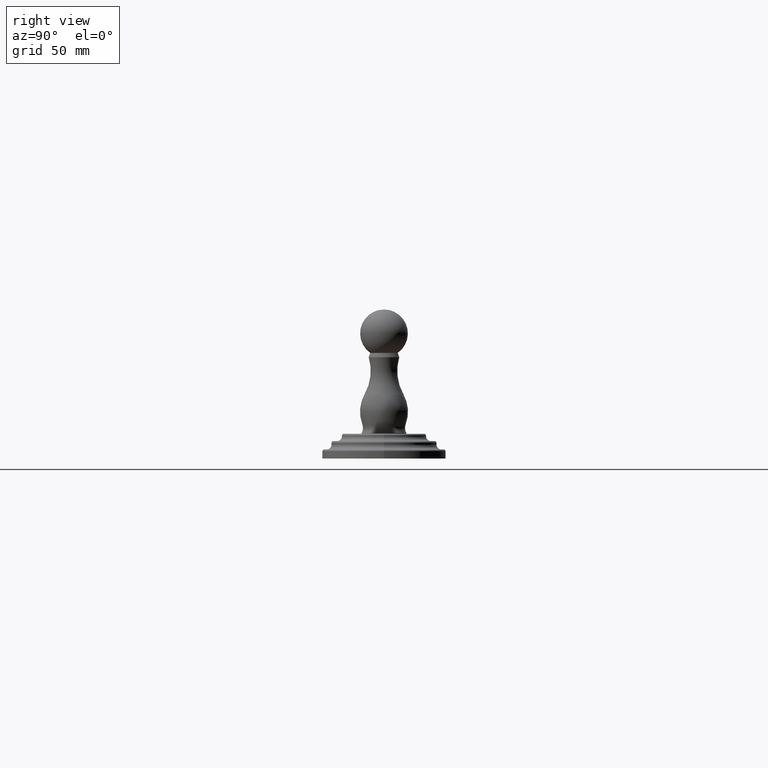
[diagram: clean part render]
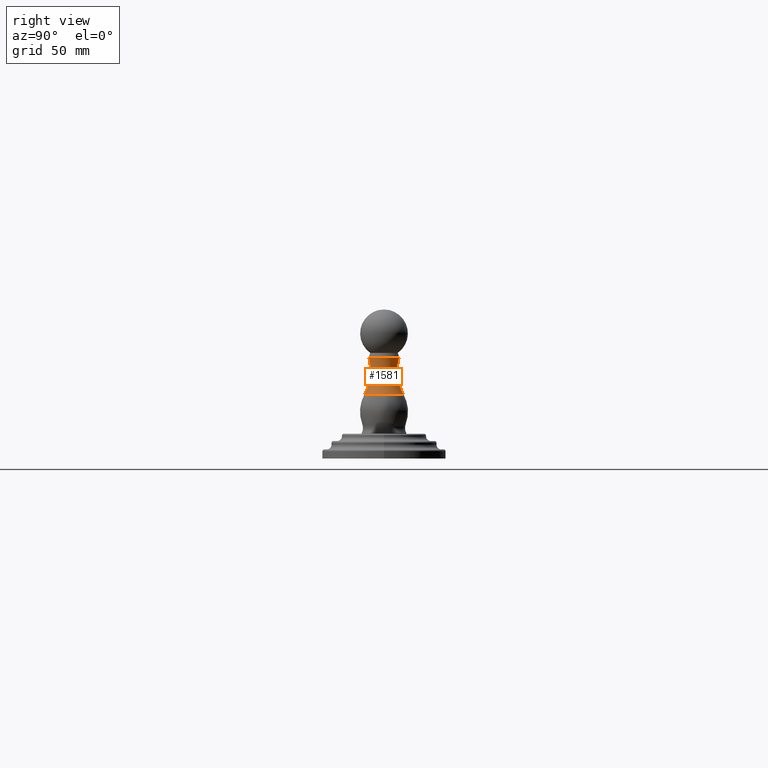
[diagram: same view with one face highlighted and labeled with its STEP entity id]
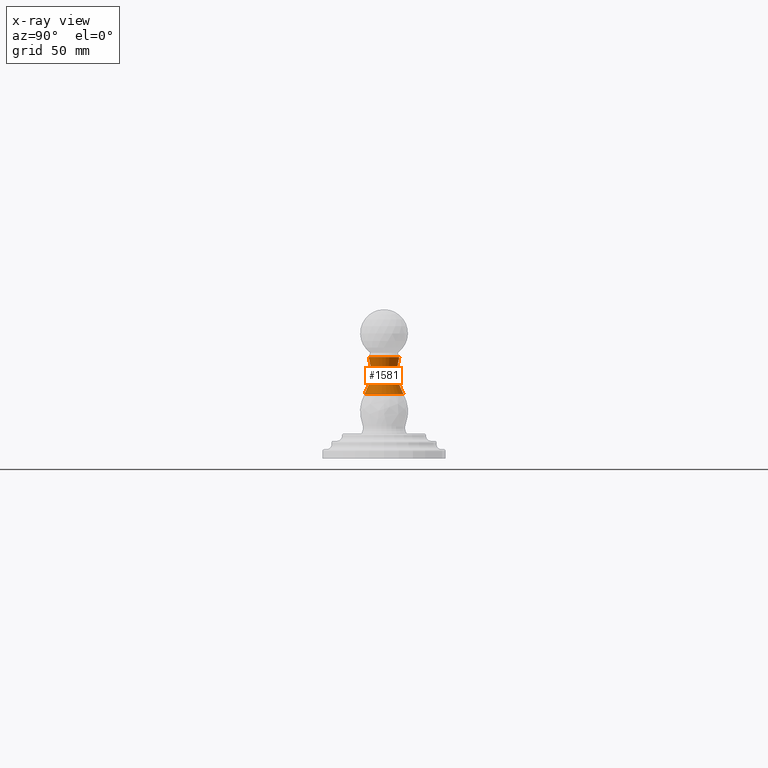
[diagram: x-ray of the same camera — body ghosted, the highlighted face saturated]
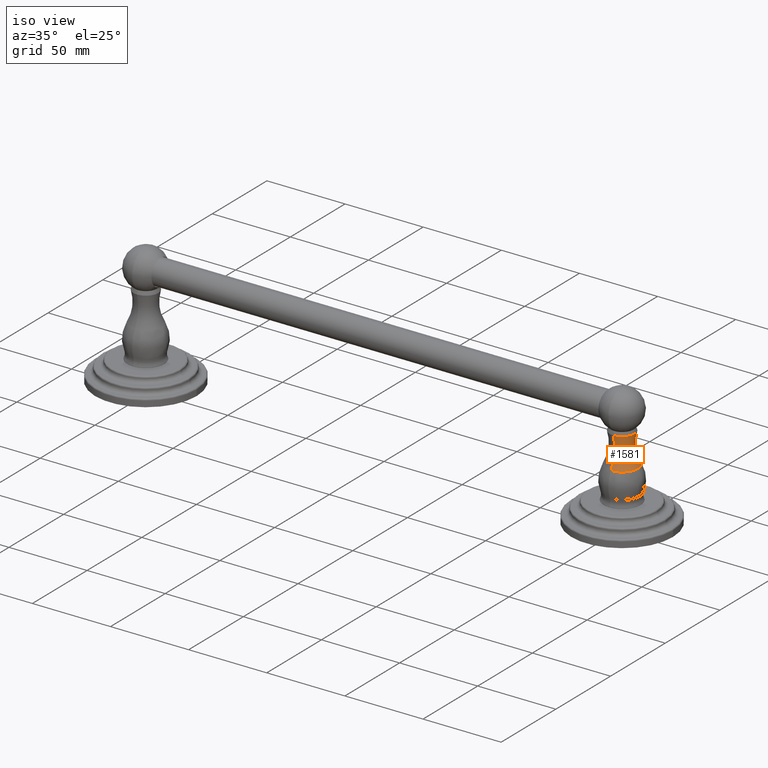
[diagram: same view with one face highlighted and labeled with its STEP entity id]
A machine part, right view. The second image highlights one B-rep face of the part: STEP entity #1581.
The next image is the same camera in x-ray: the body ghosted, the highlighted face saturated — about 0% of this face is hidden behind the body in this view.
A second angle (iso view) of the same face is appended — the face is thin or edge-on in the first view.
In plain terms, the highlighted toroidal blend (fillet) surface has major radius 31.9999 mm and minor (blend) radius 25.0366 mm.
Its self-contained STEP definition (entity closure, byte-faithful):
#406=CARTESIAN_POINT('',(6.E0,0.E0,2.090562298839E0));
#407=DIRECTION('',(0.E0,0.E0,1.E0));
#408=DIRECTION('',(0.E0,-1.E0,0.E0));
#409=AXIS2_PLACEMENT_3D('',#406,#407,#408);
#429=CARTESIAN_POINT('',(6.E0,1.259838069525E0,1.809823576478E0));
#430=DIRECTION('',(-1.E0,0.E0,0.E0));
#431=DIRECTION('',(0.E0,-8.709072738294E-1,-4.914473729618E-1));
#432=AXIS2_PLACEMENT_3D('',#429,#430,#431);
#434=CARTESIAN_POINT('',(6.E0,-1.259838069525E0,1.809823576478E0));
#435=DIRECTION('',(1.E0,0.E0,0.E0));
#436=DIRECTION('',(0.E0,8.709072738294E-1,-4.914473729618E-1));
#437=AXIS2_PLACEMENT_3D('',#434,#435,#436);
#459=CARTESIAN_POINT('',(6.E0,0.E0,1.325407199184E0));
#460=DIRECTION('',(0.E0,0.E0,1.E0));
#461=DIRECTION('',(0.E0,-1.E0,0.E0));
#462=AXIS2_PLACEMENT_3D('',#459,#460,#461);
#808=CARTESIAN_POINT('',(6.E0,-3.149692801044E-1,2.090562298839E0));
#810=VERTEX_POINT('',#808);
#814=CARTESIAN_POINT('',(6.E0,3.149692801044E-1,2.090562298839E0));
#816=VERTEX_POINT('',#814);
#834=CARTESIAN_POINT('',(6.E0,-4.013906146024E-1,1.325407199184E0));
#835=CARTESIAN_POINT('',(6.E0,4.013906146024E-1,1.325407199184E0));
#836=VERTEX_POINT('',#834);
#837=VERTEX_POINT('',#835);
#1570=CARTESIAN_POINT('',(6.E0,0.E0,1.809823576478E0));
#1571=DIRECTION('',(0.E0,0.E0,1.E0));
#1572=DIRECTION('',(0.E0,-1.E0,0.E0));
#1573=AXIS2_PLACEMENT_3D('',#1570,#1571,#1572);
#1574=TOROIDAL_SURFACE('',#1573,1.259838069525E0,9.856932887332E-1);
#1575=ORIENTED_EDGE('',*,*,#1561,.F.);
#1576=ORIENTED_EDGE('',*,*,#1512,.T.);
#1577=ORIENTED_EDGE('',*,*,#1484,.T.);
#1578=ORIENTED_EDGE('',*,*,#1509,.F.);
#1579=EDGE_LOOP('',(#1575,#1576,#1577,#1578));
#1580=FACE_OUTER_BOUND('',#1579,.F.);
#1581=ADVANCED_FACE('',(#1580),#1574,.F.);
#410=CIRCLE('',#409,3.149692801044E-1);
#433=CIRCLE('',#432,9.856932887332E-1);
#438=CIRCLE('',#437,9.856932887332E-1);
#463=CIRCLE('',#462,4.013906146024E-1);
#1484=EDGE_CURVE('',#810,#816,#410,.T.);
#1509=EDGE_CURVE('',#837,#816,#433,.T.);
#1512=EDGE_CURVE('',#836,#810,#438,.T.);
#1561=EDGE_CURVE('',#836,#837,#463,.T.);